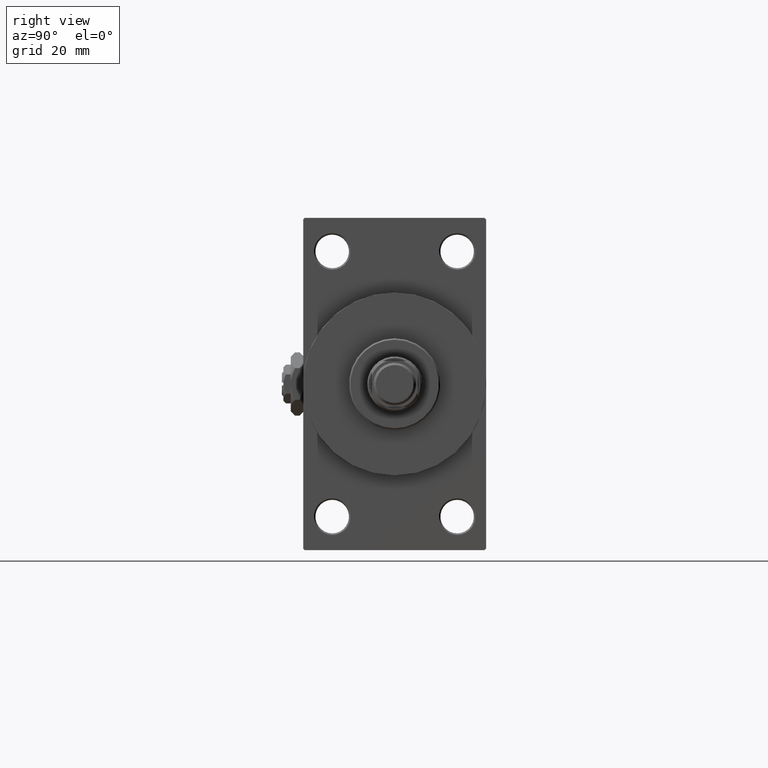
[diagram: clean part render]
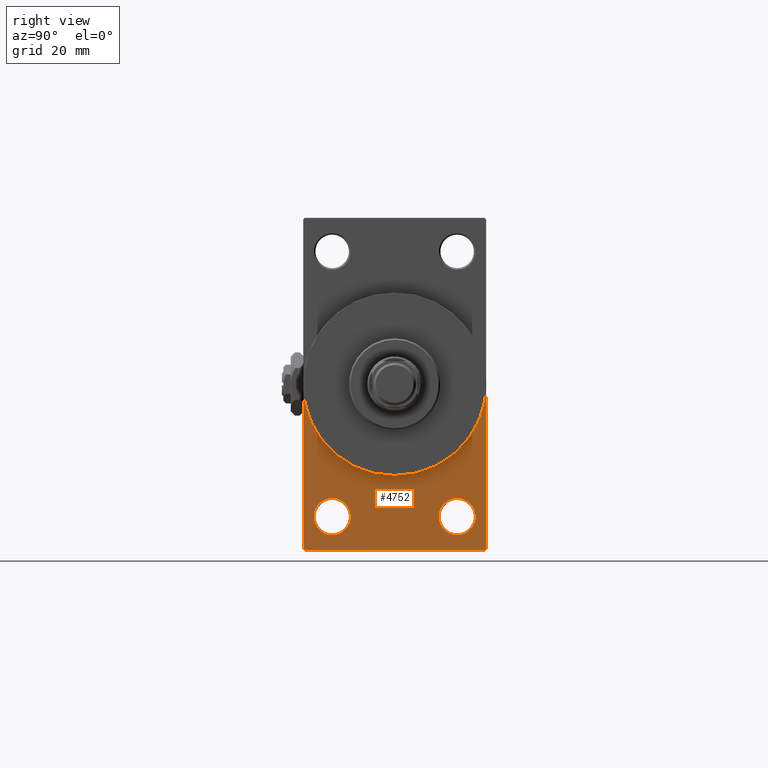
[diagram: same view with one face highlighted and labeled with its STEP entity id]
A machine part, right view. The second image highlights one B-rep face of the part: STEP entity #4752.
In plain terms, the highlighted planar face has unit normal (-1, 0, 0).
Its self-contained STEP definition (entity closure, byte-faithful):
#336 = VECTOR ( 'NONE', #10297, 1000.000000000000000 ) ;
#555 = CARTESIAN_POINT ( 'NONE',  ( 138.0000000000000000, 0.000000000000000000, 0.000000000000000000 ) ) ;
#923 = CIRCLE ( 'NONE', #47505, 30.00000000000000000 ) ;
#1221 = EDGE_CURVE ( 'NONE', #9682, #45873, #9339, .T. ) ;
#1283 = DIRECTION ( 'NONE',  ( -0.000000000000000000, 0.7071067811865474617, 0.7071067811865474617 ) ) ;
#1961 = VERTEX_POINT ( 'NONE', #34195 ) ;
#2218 = CARTESIAN_POINT ( 'NONE',  ( 138.0000000000000000, 29.99999999999999645, -53.99999999999999289 ) ) ;
#3377 = ORIENTED_EDGE ( 'NONE', *, *, #8228, .F. ) ;
#3880 = ORIENTED_EDGE ( 'NONE', *, *, #14803, .T. ) ;
#4010 = DIRECTION ( 'NONE',  ( -1.000000000000000000, 0.000000000000000000, -0.000000000000000000 ) ) ;
#4184 = EDGE_LOOP ( 'NONE', ( #5361, #30644 ) ) ;
#4752 = ADVANCED_FACE ( 'NONE', ( #7610, #11884, #35027 ), #16404, .F. ) ;
#5361 = ORIENTED_EDGE ( 'NONE', *, *, #20256, .T. ) ;
#5848 = EDGE_CURVE ( 'NONE', #1961, #6026, #41795, .T. ) ;
#6026 = VERTEX_POINT ( 'NONE', #23401 ) ;
#6611 = DIRECTION ( 'NONE',  ( 1.000000000000000000, 0.000000000000000000, 0.000000000000000000 ) ) ;
#6794 = CARTESIAN_POINT ( 'NONE',  ( 138.0000000000000000, -29.50000000000000355, -54.50000000000000000 ) ) ;
#7610 = FACE_BOUND ( 'NONE', #47297, .T. ) ;
#7982 = VECTOR ( 'NONE', #16007, 1000.000000000000000 ) ;
#8228 = EDGE_CURVE ( 'NONE', #1961, #45927, #923, .T. ) ;
#9064 = AXIS2_PLACEMENT_3D ( 'NONE', #30388, #11771, #45743 ) ;
#9158 = CIRCLE ( 'NONE', #37269, 6.000000000000088818 ) ;
#9339 = LINE ( 'NONE', #46821, #20751 ) ;
#9682 = VERTEX_POINT ( 'NONE', #43650 ) ;
#10242 = ORIENTED_EDGE ( 'NONE', *, *, #35536, .T. ) ;
#10297 = DIRECTION ( 'NONE',  ( 0.000000000000000000, -1.000000000000000000, -1.156482317317871478E-16 ) ) ;
#10625 = DIRECTION ( 'NONE',  ( -1.000000000000000000, 0.000000000000000000, -0.000000000000000000 ) ) ;
#11485 = ORIENTED_EDGE ( 'NONE', *, *, #45245, .F. ) ;
#11771 = DIRECTION ( 'NONE',  ( -1.000000000000000000, 0.000000000000000000, -0.000000000000000000 ) ) ;
#11884 = FACE_BOUND ( 'NONE', #4184, .T. ) ;
#12118 = EDGE_CURVE ( 'NONE', #9682, #43537, #29658, .T. ) ;
#12287 = ORIENTED_EDGE ( 'NONE', *, *, #42006, .T. ) ;
#12648 = VERTEX_POINT ( 'NONE', #49207 ) ;
#13229 = DIRECTION ( 'NONE',  ( -1.000000000000000000, 0.000000000000000000, -0.000000000000000000 ) ) ;
#13855 = LINE ( 'NONE', #6794, #42072 ) ;
#14577 = VERTEX_POINT ( 'NONE', #31774 ) ;
#14625 = DIRECTION ( 'NONE',  ( 0.000000000000000000, 0.000000000000000000, -1.000000000000000000 ) ) ;
#14649 = DIRECTION ( 'NONE',  ( 0.000000000000000000, 0.000000000000000000, -1.000000000000000000 ) ) ;
#14803 = EDGE_CURVE ( 'NONE', #28935, #12648, #19691, .T. ) ;
#15261 = LINE ( 'NONE', #38657, #7982 ) ;
#15277 = DIRECTION ( 'NONE',  ( 0.000000000000000000, 0.000000000000000000, -1.000000000000000000 ) ) ;
#15657 = DIRECTION ( 'NONE',  ( -0.000000000000000000, 0.000000000000000000, 1.000000000000000000 ) ) ;
#16007 = DIRECTION ( 'NONE',  ( 0.000000000000000000, 0.000000000000000000, -1.000000000000000000 ) ) ;
#16404 = PLANE ( 'NONE',  #32941 ) ;
#17895 = CIRCLE ( 'NONE', #9064, 6.000000000000088818 ) ;
#18603 = DIRECTION ( 'NONE',  ( 0.000000000000000000, 0.7071067811865352493, -0.7071067811865597852 ) ) ;
#19138 = CARTESIAN_POINT ( 'NONE',  ( 138.0000000000000000, -20.50000000000000000, -43.50000000000000000 ) ) ;
#19590 = CARTESIAN_POINT ( 'NONE',  ( 138.0000000000000000, 20.50000000000000000, -43.50000000000000000 ) ) ;
#19691 = CIRCLE ( 'NONE', #37366, 6.000000000000088818 ) ;
#20256 = EDGE_CURVE ( 'NONE', #14577, #24490, #27078, .T. ) ;
#20751 = VECTOR ( 'NONE', #1283, 1000.000000000000114 ) ;
#22662 = DIRECTION ( 'NONE',  ( 0.000000000000000000, 0.000000000000000000, 1.000000000000000000 ) ) ;
#23401 = CARTESIAN_POINT ( 'NONE',  ( 138.0000000000000000, -30.00000000000000000, -53.99999999999998579 ) ) ;
#23947 = CARTESIAN_POINT ( 'NONE',  ( 138.0000000000000000, 20.50000000000000000, -37.49999999999990763 ) ) ;
#24490 = VERTEX_POINT ( 'NONE', #23947 ) ;
#24521 = AXIS2_PLACEMENT_3D ( 'NONE', #29259, #6611, #14649 ) ;
#27078 = CIRCLE ( 'NONE', #44784, 6.000000000000088818 ) ;
#27391 = DIRECTION ( 'NONE',  ( 0.000000000000000000, 0.000000000000000000, 1.000000000000000000 ) ) ;
#28270 = EDGE_CURVE ( 'NONE', #43501, #45873, #15261, .T. ) ;
#28571 = DIRECTION ( 'NONE',  ( 0.000000000000000000, 0.000000000000000000, 1.000000000000000000 ) ) ;
#28935 = VERTEX_POINT ( 'NONE', #42757 ) ;
#29136 = CARTESIAN_POINT ( 'NONE',  ( 138.0000000000000000, 3.673940397442059178E-15, -30.00000000000000000 ) ) ;
#29259 = CARTESIAN_POINT ( 'NONE',  ( 138.0000000000000000, 0.000000000000000000, 0.000000000000000000 ) ) ;
#29658 = LINE ( 'NONE', #44766, #336 ) ;
#30388 = CARTESIAN_POINT ( 'NONE',  ( 138.0000000000000000, -20.50000000000000000, -43.50000000000000000 ) ) ;
#30541 = ORIENTED_EDGE ( 'NONE', *, *, #12118, .F. ) ;
#30644 = ORIENTED_EDGE ( 'NONE', *, *, #42195, .T. ) ;
#31190 = ORIENTED_EDGE ( 'NONE', *, *, #1221, .T. ) ;
#31774 = CARTESIAN_POINT ( 'NONE',  ( 138.0000000000000000, 20.50000000000000000, -49.50000000000008527 ) ) ;
#32941 = AXIS2_PLACEMENT_3D ( 'NONE', #555, #42595, #15657 ) ;
#34195 = CARTESIAN_POINT ( 'NONE',  ( 138.0000000000000000, -30.00000000000000000, 0.000000000000000000 ) ) ;
#34393 = CARTESIAN_POINT ( 'NONE',  ( 138.0000000000000000, 0.000000000000000000, 0.000000000000000000 ) ) ;
#35027 = FACE_OUTER_BOUND ( 'NONE', #41859, .T. ) ;
#35370 = VECTOR ( 'NONE', #14625, 1000.000000000000000 ) ;
#35536 = EDGE_CURVE ( 'NONE', #12648, #28935, #17895, .T. ) ;
#36355 = ORIENTED_EDGE ( 'NONE', *, *, #28270, .F. ) ;
#37038 = ORIENTED_EDGE ( 'NONE', *, *, #5848, .T. ) ;
#37269 = AXIS2_PLACEMENT_3D ( 'NONE', #19590, #4010, #27391 ) ;
#37366 = AXIS2_PLACEMENT_3D ( 'NONE', #19138, #10625, #22662 ) ;
#37516 = CARTESIAN_POINT ( 'NONE',  ( 138.0000000000000000, -30.00000000000000000, 54.50000000000000000 ) ) ;
#37589 = CARTESIAN_POINT ( 'NONE',  ( 138.0000000000000000, -29.50000000000000355, -54.50000000000000000 ) ) ;
#38657 = CARTESIAN_POINT ( 'NONE',  ( 138.0000000000000000, 29.99999999999999645, 54.49999999999999289 ) ) ;
#39797 = CIRCLE ( 'NONE', #24521, 30.00000000000000000 ) ;
#41795 = LINE ( 'NONE', #37516, #35370 ) ;
#41859 = EDGE_LOOP ( 'NONE', ( #37038, #12287, #30541, #31190, #36355, #11485, #3377 ) ) ;
#42006 = EDGE_CURVE ( 'NONE', #6026, #43537, #13855, .T. ) ;
#42072 = VECTOR ( 'NONE', #18603, 1000.000000000000000 ) ;
#42195 = EDGE_CURVE ( 'NONE', #24490, #14577, #9158, .T. ) ;
#42595 = DIRECTION ( 'NONE',  ( -1.000000000000000000, 0.000000000000000000, -0.000000000000000000 ) ) ;
#42757 = CARTESIAN_POINT ( 'NONE',  ( 138.0000000000000000, -20.50000000000000000, -37.49999999999990763 ) ) ;
#43501 = VERTEX_POINT ( 'NONE', #45883 ) ;
#43537 = VERTEX_POINT ( 'NONE', #37589 ) ;
#43650 = CARTESIAN_POINT ( 'NONE',  ( 138.0000000000000000, 29.49999999999999645, -54.49999999999999289 ) ) ;
#44766 = CARTESIAN_POINT ( 'NONE',  ( 138.0000000000000000, 29.99999999999999645, -54.49999999999999289 ) ) ;
#44784 = AXIS2_PLACEMENT_3D ( 'NONE', #47690, #13229, #28571 ) ;
#45245 = EDGE_CURVE ( 'NONE', #45927, #43501, #39797, .T. ) ;
#45743 = DIRECTION ( 'NONE',  ( 0.000000000000000000, 0.000000000000000000, 1.000000000000000000 ) ) ;
#45873 = VERTEX_POINT ( 'NONE', #2218 ) ;
#45883 = CARTESIAN_POINT ( 'NONE',  ( 138.0000000000000000, 30.00000000000000000, 0.000000000000000000 ) ) ;
#45927 = VERTEX_POINT ( 'NONE', #29136 ) ;
#46821 = CARTESIAN_POINT ( 'NONE',  ( 138.0000000000000000, 29.99999999999999645, -53.99999999999999289 ) ) ;
#47297 = EDGE_LOOP ( 'NONE', ( #10242, #3880 ) ) ;
#47505 = AXIS2_PLACEMENT_3D ( 'NONE', #34393, #49744, #15277 ) ;
#47690 = CARTESIAN_POINT ( 'NONE',  ( 138.0000000000000000, 20.50000000000000000, -43.50000000000000000 ) ) ;
#49207 = CARTESIAN_POINT ( 'NONE',  ( 138.0000000000000000, -20.50000000000000000, -49.50000000000008527 ) ) ;
#49744 = DIRECTION ( 'NONE',  ( 1.000000000000000000, 0.000000000000000000, 0.000000000000000000 ) ) ;